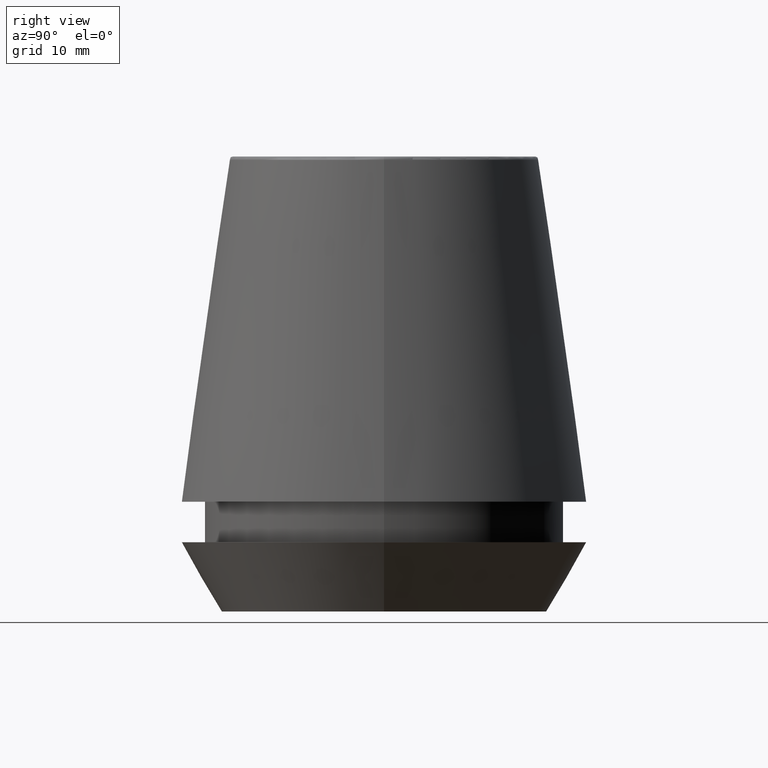
[diagram: clean part render]
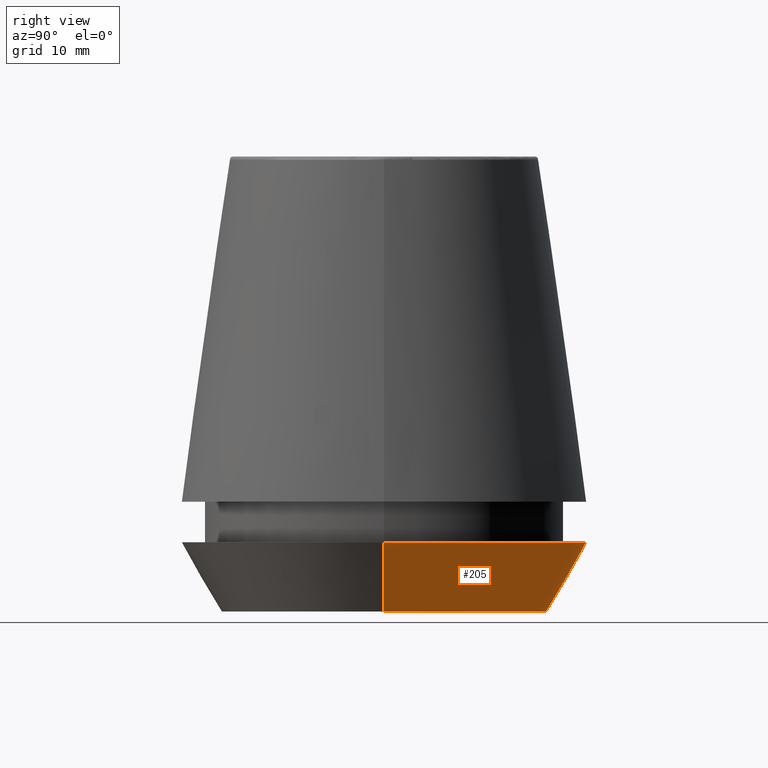
[diagram: same view with one face highlighted and labeled with its STEP entity id]
A machine part, right view. The second image highlights one B-rep face of the part: STEP entity #205.
In plain terms, the highlighted conical surface has half-angle 30 deg.
Its self-contained STEP definition (entity closure, byte-faithful):
#22 = CONICAL_SURFACE ( 'NONE', #142, 16.45854811567268100, 0.5235987755982921500 ) ;
#43 = CIRCLE ( 'NONE', #210, 16.45854811567268100 ) ;
#53 = EDGE_LOOP ( 'NONE', ( #259, #258, #345, #250 ) ) ;
#56 = DIRECTION ( 'NONE',  ( 1.000000000000000000, 0.0000000000000000000, 0.0000000000000000000 ) ) ;
#57 = DIRECTION ( 'NONE',  ( 1.000000000000000000, 0.0000000000000000000, 0.0000000000000000000 ) ) ;
#62 = EDGE_CURVE ( 'NONE', #354, #213, #158, .T. ) ;
#83 = CARTESIAN_POINT ( 'NONE',  ( -16.45854811567268100, 2.015590826847124800E-015, 0.0000000000000000000 ) ) ;
#92 = EDGE_CURVE ( 'NONE', #324, #213, #108, .T. ) ;
#108 = LINE ( 'NONE', #83, #137 ) ;
#125 = CARTESIAN_POINT ( 'NONE',  ( -16.45854811567268100, 2.263058382549599700E-015, 0.0000000000000000000 ) ) ;
#137 = VECTOR ( 'NONE', #242, 1000.000000000000000 ) ;
#138 = CARTESIAN_POINT ( 'NONE',  ( 0.0000000000000000000, 0.0000000000000000000, 7.000000000000006200 ) ) ;
#142 = AXIS2_PLACEMENT_3D ( 'NONE', #356, #339, #154 ) ;
#154 = DIRECTION ( 'NONE',  ( 1.000000000000000000, 0.0000000000000000000, 0.0000000000000000000 ) ) ;
#158 = CIRCLE ( 'NONE', #171, 20.50000000000000000 ) ;
#164 = CARTESIAN_POINT ( 'NONE',  ( -20.50000000000000000, 2.510525938252074100E-015, 7.000000000000006200 ) ) ;
#171 = AXIS2_PLACEMENT_3D ( 'NONE', #138, #206, #57 ) ;
#188 = EDGE_CURVE ( 'NONE', #313, #354, #283, .T. ) ;
#194 = FACE_OUTER_BOUND ( 'NONE', #53, .T. ) ;
#197 = EDGE_CURVE ( 'NONE', #313, #324, #43, .T. ) ;
#205 = ADVANCED_FACE ( 'NONE', ( #194 ), #22, .T. ) ;
#206 = DIRECTION ( 'NONE',  ( -0.0000000000000000000, -0.0000000000000000000, 1.000000000000000000 ) ) ;
#210 = AXIS2_PLACEMENT_3D ( 'NONE', #212, #241, #56 ) ;
#212 = CARTESIAN_POINT ( 'NONE',  ( 0.0000000000000000000, 0.0000000000000000000, 0.0000000000000000000 ) ) ;
#213 = VERTEX_POINT ( 'NONE', #164 ) ;
#221 = CARTESIAN_POINT ( 'NONE',  ( 16.45854811567268100, 0.0000000000000000000, 0.0000000000000000000 ) ) ;
#223 = CARTESIAN_POINT ( 'NONE',  ( 20.50000000000000000, 0.0000000000000000000, 7.000000000000006200 ) ) ;
#241 = DIRECTION ( 'NONE',  ( -0.0000000000000000000, -0.0000000000000000000, 1.000000000000000000 ) ) ;
#242 = DIRECTION ( 'NONE',  ( -0.4999999999999941700, 6.123233995736694500E-017, 0.8660254037844420400 ) ) ;
#250 = ORIENTED_EDGE ( 'NONE', *, *, #188, .F. ) ;
#258 = ORIENTED_EDGE ( 'NONE', *, *, #92, .T. ) ;
#259 = ORIENTED_EDGE ( 'NONE', *, *, #197, .T. ) ;
#266 = DIRECTION ( 'NONE',  ( 0.4999999999999941700, 0.0000000000000000000, 0.8660254037844420400 ) ) ;
#283 = LINE ( 'NONE', #290, #351 ) ;
#290 = CARTESIAN_POINT ( 'NONE',  ( 16.45854811567268100, 0.0000000000000000000, 0.0000000000000000000 ) ) ;
#313 = VERTEX_POINT ( 'NONE', #221 ) ;
#324 = VERTEX_POINT ( 'NONE', #125 ) ;
#339 = DIRECTION ( 'NONE',  ( -0.0000000000000000000, -0.0000000000000000000, 1.000000000000000000 ) ) ;
#345 = ORIENTED_EDGE ( 'NONE', *, *, #62, .F. ) ;
#351 = VECTOR ( 'NONE', #266, 1000.000000000000000 ) ;
#354 = VERTEX_POINT ( 'NONE', #223 ) ;
#356 = CARTESIAN_POINT ( 'NONE',  ( 0.0000000000000000000, 0.0000000000000000000, 0.0000000000000000000 ) ) ;